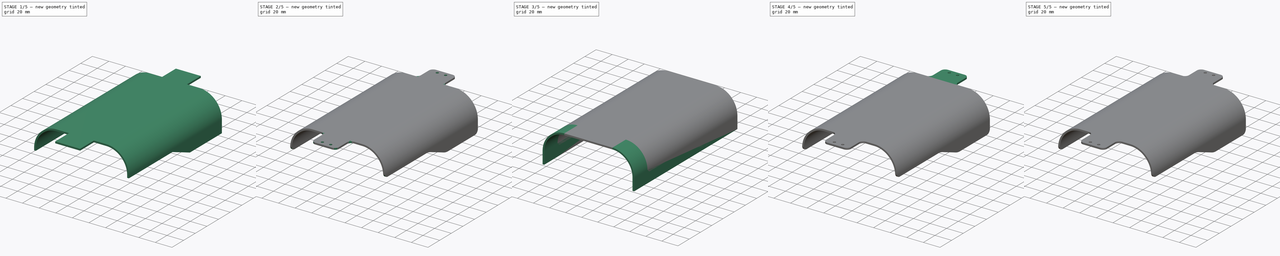
[diagram: build sequence overview — one tinted view per stage of 5, left to right]
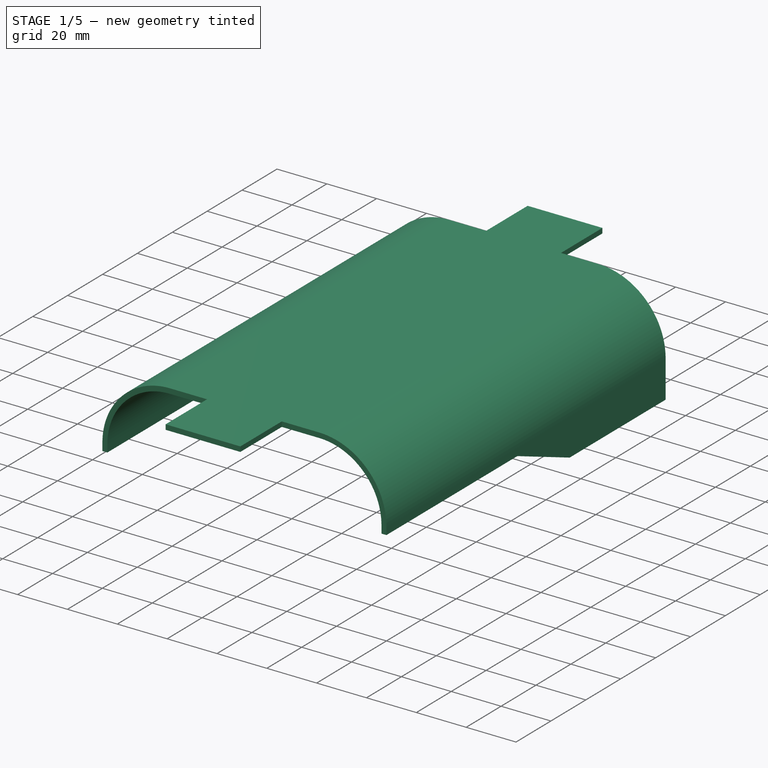
[diagram: stage 1 of 5 — iso view after this stage's code; geometry added in this stage tinted green]
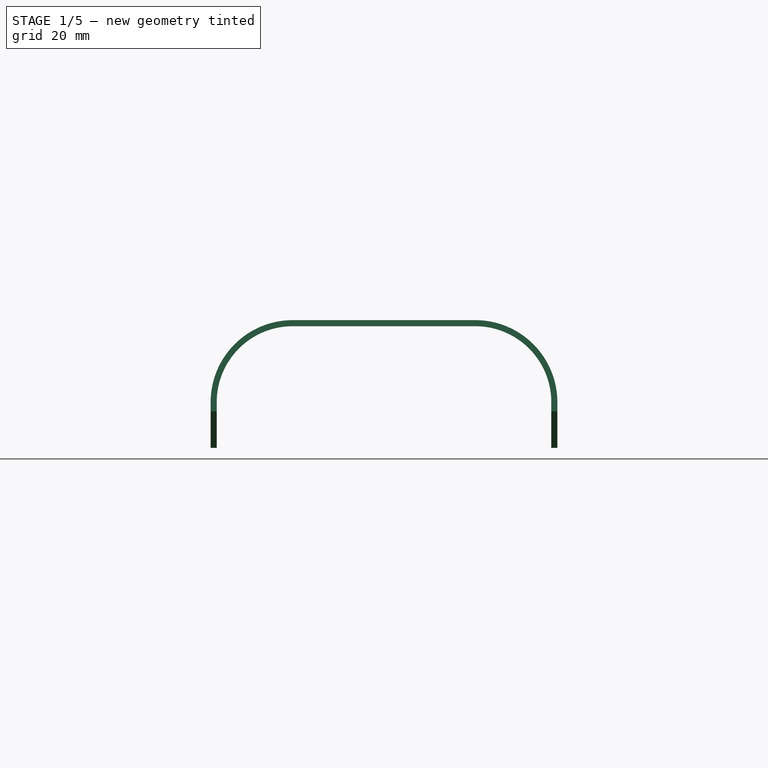
[diagram: stage 1 of 5 — front view after this stage's code; geometry added in this stage tinted green]
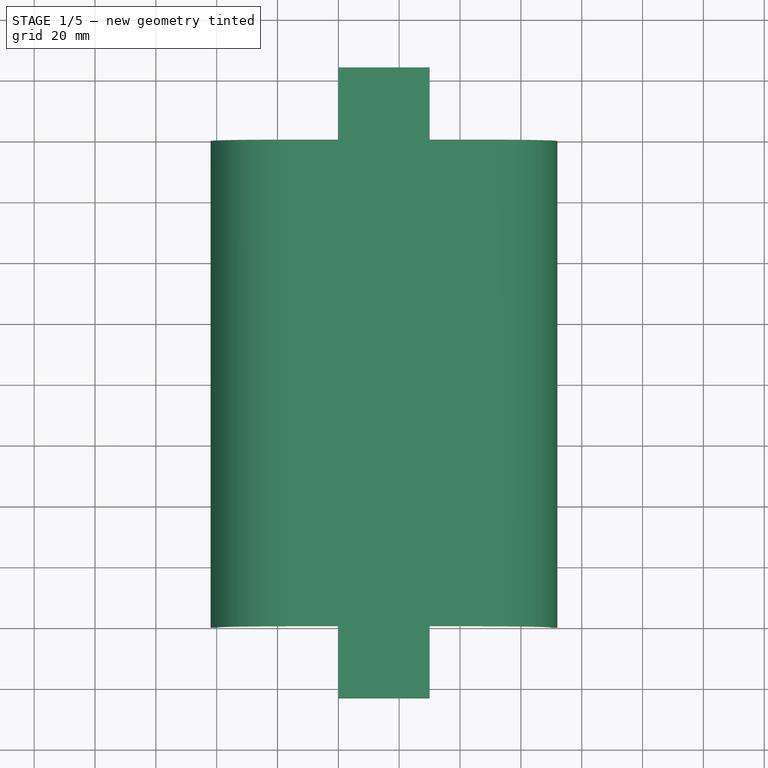
[diagram: stage 1 of 5 — top view after this stage's code; geometry added in this stage tinted green]
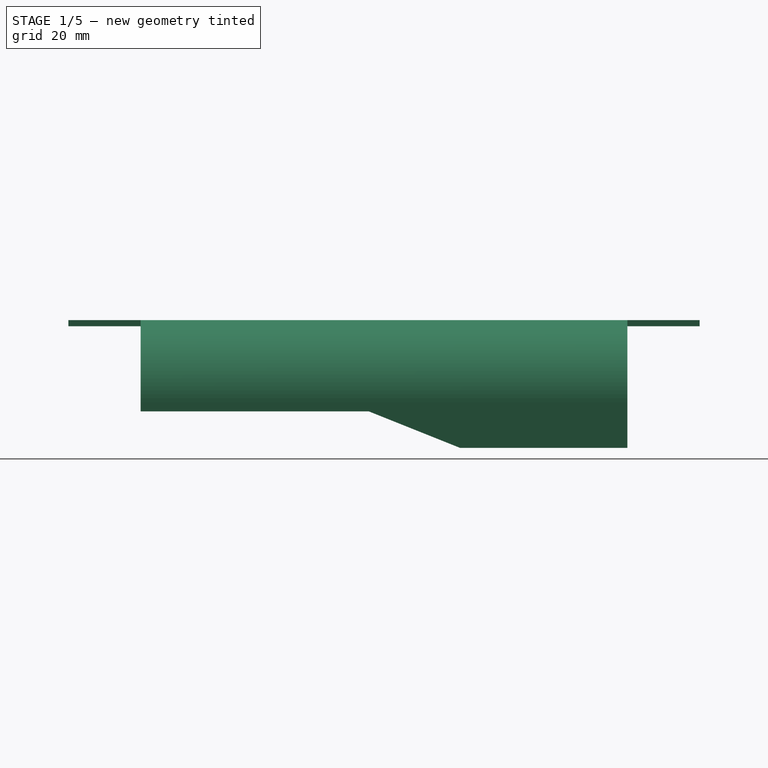
[diagram: stage 1 of 5 — right view after this stage's code; geometry added in this stage tinted green]
FCSTD DOCUMENT  (FreeCAD 0.18R4 (GitTag))
Label: Bottom_Cover_Split_Rear
License: CreativeCommons Attribution-NonCommercial
LicenseURL: http://creativecommons.org/licenses/by-nc/4.0/
objects: Sketcher::SketchObject×18, PartDesign::Pocket×13, PartDesign::Pad×8, PartDesign::Fillet×8, PartDesign::Thickness×2, PartDesign::Body×2
note: 72 computed .brp shape members not serialized (recipe doc carries the construction recipe); baked Part::Feature solids carry a one-line shape summary decoded from their .brp

FEATURE [Sketcher::SketchObject] Sketch
  AttachmentOffset = pos=(0,0,-108.85) rot=(0,0,1;0rad)
  MapMode = 5
  Placement = pos=(0,108.85,2.42e-14) rot=(1,0,0;1.5708rad)
  Support = -> [XZ_Plane226]
  sketch-geometry (4):
    g0: LineSegment StartX=-2 StartY=0 StartZ=0 EndX=112 EndY=0 EndZ=0
    g1: LineSegment StartX=112 StartY=0 StartZ=0 EndX=112 EndY=42 EndZ=0
    g2: LineSegment StartX=112 StartY=42 StartZ=0 EndX=-2 EndY=42 EndZ=0
    g3: LineSegment StartX=-2 StartY=42 StartZ=0 EndX=-2 EndY=0 EndZ=0
  constraints (12):
    c: Coincident(g0,g1)
    c: Coincident(g1,g2)
    c: Coincident(g2,g3)
    c: Coincident(g3,g0)
    c: Horizontal(g0)
    c: Horizontal(g2)
    c: Vertical(g1)
    c: Vertical(g3)
    c: PointOnObject(g0,g-1)
    c: DistanceY(g1,g1) = 42
    c: DistanceX(g2,g2) = 114
    c: DistanceX(g0,g-1) = 2
FEATURE [PartDesign::Body] Body147  label="Bottom_Cover_Split_Rear (Template)"
  Group = -> [Sketch437,Pad223,Thickness004,Pad225,Pad224,Sketch442,Pocket221,Sketch441,Pocket222,Sketch440,Pocket219,Fillet079,Fillet080,Sketch445,Pad222,Fillet081,Fillet078,Sketch438,Pocket216,Sketch444,Pocket217,Sketch439,Pocket220,Sketch]
  Origin = -> Origin226
  Placement = pos=(55,-80,12.25) rot=(0,1,0;3.14159rad)
  Tip = -> Pocket220
FEATURE [Sketcher::SketchObject] Sketch448
  MapMode = 5
  Placement = pos=(0,0,0) rot=(1,0,0;1.5708rad)
  Support = -> [XZ_Plane227]
  sketch-geometry (6):
    g0: LineSegment StartX=25 StartY=40 StartZ=0 EndX=85 EndY=40 EndZ=0
    g1: LineSegment StartX=110 StartY=15 StartZ=0 EndX=110 EndY=0 EndZ=0
    g2: LineSegment StartX=110 StartY=0 StartZ=0 EndX=0 EndY=0 EndZ=0
    g3: LineSegment StartX=0 StartY=0 StartZ=0 EndX=0 EndY=15 EndZ=0
    g4: ArcOfCircle CenterX=25 CenterY=15 CenterZ=0 NormalX=0 NormalY=0 NormalZ=1 AngleXU=0 Radius=25 StartAngle=1.5708 EndAngle=3.14159
    g5: ArcOfCircle CenterX=85 CenterY=15 CenterZ=0 NormalX=0 NormalY=0 NormalZ=1 AngleXU=0 Radius=25 StartAngle=0 EndAngle=1.5708
  constraints (15):
    c: Coincident(g1,g2)
    c: Coincident(g2,g3)
    c: Horizontal(g0)
    c: Horizontal(g2)
    c: Vertical(g1)
    c: Vertical(g3)
    c: Tangent(g3,g4) = 1.5708
    c: Tangent(g0,g4) = 1.5708
    c: Tangent(g0,g5) = 1.5708
    c: Tangent(g1,g5) = 1.5708
    c: DistanceX(g2,g2) = 110
    c: Equal(g5,g4)
    c: Radius(g4) = 25
    c: Coincident(g2,g-1)
    c: DistanceY(g2,g0) = 40
FEATURE [PartDesign::Pad] Pad229  label="Baseplate024"
  Length = 160
  Length2 = 100
  Placement = pos=(0,0,0) rot=(1,0,0;1.5708rad)
  Profile = -> Sketch448
  Reversed = true
  Type = 0
FEATURE [PartDesign::Thickness] Thickness005
  Base = -> Pad229 [Face7,Face8,Face2]
  BaseFeature = -> Pad229
  Join = 0
  Mode = 0
  Value = 2
FEATURE [PartDesign::Pad] Pad226  label="Front Expansion004"
  BaseFeature = -> Thickness005
  Length = 23.75
  Length2 = 100
  Profile = -> Thickness005 [Face6]
  Type = 0
FEATURE [PartDesign::Pad] Pad227  label="Rear Expansion004"
  BaseFeature = -> Pad226
  Length = 23.75
  Length2 = 100
  Profile = -> Pad226 [Face5]
  Type = 0
FEATURE [Sketcher::SketchObject] Sketch451
  AttachmentOffset = pos=(0,0,-108.85) rot=(0,0,1;0rad)
  MapMode = 5
  Placement = pos=(0,108.85,2.42e-14) rot=(1,0,0;1.5708rad)
  Support = -> [XZ_Plane227]
  sketch-geometry (4):
    g0: LineSegment StartX=-2 StartY=0 StartZ=0 EndX=112 EndY=0 EndZ=0
    g1: LineSegment StartX=112 StartY=0 StartZ=0 EndX=112 EndY=42 EndZ=0
    g2: LineSegment StartX=112 StartY=42 StartZ=0 EndX=-2 EndY=42 EndZ=0
    g3: LineSegment StartX=-2 StartY=42 StartZ=0 EndX=-2 EndY=0 EndZ=0
  constraints (12):
    c: Coincident(g0,g1)
    c: Coincident(g1,g2)
    c: Coincident(g2,g3)
    c: Coincident(g3,g0)
    c: Horizontal(g0)
    c: Horizontal(g2)
    c: Vertical(g1)
    c: Vertical(g3)
    c: PointOnObject(g0,g-1)
    c: DistanceY(g1,g1) = 42
    c: DistanceX(g2,g2) = 114
    c: DistanceX(g0,g-1) = 2
FEATURE [Sketcher::SketchObject] Sketch453
  AttachmentOffset = pos=(0,0,-108.85) rot=(0,0,1;0rad)
  MapMode = 5
  Placement = pos=(0,108.85,2.42e-14) rot=(1,0,0;1.5708rad)
  Support = -> [XZ_Plane227]
  sketch-geometry (14):
    g0: LineSegment StartX=0 StartY=15 StartZ=0 EndX=6.5 EndY=15 EndZ=0
    g1: LineSegment StartX=6.5 StartY=15 StartZ=0 EndX=6.5 EndY=31.8152 EndZ=0
    g2: ArcOfCircle CenterX=25 CenterY=15 CenterZ=0 NormalX=0 NormalY=0 NormalZ=1 AngleXU=0 Radius=25 StartAngle=2.40387 EndAngle=3.14159
    g3: LineSegment StartX=110 StartY=15 StartZ=0 EndX=103.5 EndY=15 EndZ=0
    g4: LineSegment StartX=103.5 StartY=15 StartZ=0 EndX=103.5 EndY=31.8152 EndZ=0
    g5: ArcOfCircle CenterX=85 CenterY=15 CenterZ=0 NormalX=0 NormalY=0 NormalZ=1 AngleXU=0 Radius=25 StartAngle=6e-16 EndAngle=0.737726
    g6: LineSegment StartX=24.25 StartY=40 StartZ=0 EndX=30.75 EndY=40 EndZ=0
    g7: LineSegment StartX=30.75 StartY=40 StartZ=0 EndX=30.75 EndY=33.5 EndZ=0
    g8: LineSegment StartX=30.75 StartY=33.5 StartZ=0 EndX=24.25 EndY=33.5 EndZ=0
    g9: LineSegment StartX=24.25 StartY=33.5 StartZ=0 EndX=24.25 EndY=40 EndZ=0
    g10: LineSegment StartX=85.75 StartY=40 StartZ=0 EndX=79.25 EndY=40 EndZ=0
    g11: LineSegment StartX=79.25 StartY=40 StartZ=0 EndX=79.25 EndY=33.5 EndZ=0
    g12: LineSegment StartX=79.25 StartY=33.5 StartZ=0 EndX=85.75 EndY=33.5 EndZ=0
    g13: LineSegment StartX=85.75 StartY=33.5 StartZ=0 EndX=85.75 EndY=40 EndZ=0
  constraints (46):
    c: PointOnObject(g0,g-2)
    c: Horizontal(g0)
    c: Coincident(g0,g1)
    c: Vertical(g1)
    c: Coincident(g2,g0)
    c: DistanceX(g0,g0) = 6.5
    c: Radius(g2) = 25
    c: DistanceY(g-1,g0) = 15
    c: Perpendicular(g2,g0)
    c: Coincident(g3,g4)
    c: Vertical(g4)
    c: Coincident(g5,g3)
    c: Horizontal(g3)
    c: Horizontal(g3,g0)
    c: Equal(g2,g5)
    c: Perpendicular(g5,g3)
    c: Equal(g3,g0)
    c: Coincident(g1,g2)
    c: Coincident(g4,g5)
    c: DistanceX(g0,g3) = 110
    c: Coincident(g6,g7)
    c: Coincident(g7,g8)
    c: Coincident(g8,g9)
    c: Coincident(g9,g6)
    c: Horizontal(g6)
    c: Horizontal(g8)
    c: Vertical(g7)
    c: Vertical(g9)
    c: Coincident(g10,g11)
    c: Coincident(g11,g12)
    c: Coincident(g12,g13)
    c: Coincident(g13,g10)
    c: Horizontal(g10)
    c: Horizontal(g12)
    c: Vertical(g11)
    c: Vertical(g13)
    c: Equal(g12,g8)
    c: Equal(g8,g3)
    c: Equal(g8,g7)
    c: Equal(g7,g13)
    c: Horizontal(g10,g6)
    c: DistanceX(g6,g10) = 55
    c: DistanceY(g-1,g6) = 40
    c: DistanceX(g-1,g8) = 24.25
    c: DistanceX(g1,g8) = 17.75
    c: DistanceX(g12,g4) = 17.75
FEATURE [Sketcher::SketchObject] Sketch454
  MapMode = 5
  Placement = pos=(0,-9.2e-15,42) rot=(0,0,1;0rad)
  Support = -> [Pad227]
  sketch-geometry (16):
    g0: LineSegment StartX=-2 StartY=0 StartZ=0 EndX=40 EndY=0 EndZ=0
    g1: LineSegment StartX=40 StartY=0 StartZ=0 EndX=40 EndY=-23.75 EndZ=0
    g2: LineSegment StartX=40 StartY=-23.75 StartZ=0 EndX=-2 EndY=-23.75 EndZ=0
    g3: LineSegment StartX=-2 StartY=-23.75 StartZ=0 EndX=-2 EndY=0 EndZ=0
    g4: LineSegment StartX=112 StartY=0 StartZ=0 EndX=70 EndY=0 EndZ=0
    g5: LineSegment StartX=70 StartY=0 StartZ=0 EndX=70 EndY=-23.75 EndZ=0
    g6: LineSegment StartX=70 StartY=-23.75 StartZ=0 EndX=112 EndY=-23.75 EndZ=0
    g7: LineSegment StartX=112 StartY=-23.75 StartZ=0 EndX=112 EndY=0 EndZ=0
    g8: LineSegment StartX=-2 StartY=160 StartZ=0 EndX=40 EndY=160 EndZ=0
    g9: LineSegment StartX=40 StartY=160 StartZ=0 EndX=40 EndY=183.75 EndZ=0
    g10: LineSegment StartX=40 StartY=183.75 StartZ=0 EndX=-2 EndY=183.75 EndZ=0
    g11: LineSegment StartX=-2 StartY=183.75 StartZ=0 EndX=-2 EndY=160 EndZ=0
    g12: LineSegment StartX=112 StartY=183.75 StartZ=0 EndX=70 EndY=183.75 EndZ=0
    g13: LineSegment StartX=70 StartY=183.75 StartZ=0 EndX=70 EndY=160 EndZ=0
    g14: LineSegment StartX=70 StartY=160 StartZ=0 EndX=112 EndY=160 EndZ=0
    g15: LineSegment StartX=112 StartY=160 StartZ=0 EndX=112 EndY=183.75 EndZ=0
  constraints (48):
    c: Coincident(g0,g1)
    c: Coincident(g1,g2)
    c: Coincident(g2,g3)
    c: Coincident(g3,g0)
    c: Horizontal(g0)
    c: Horizontal(g2)
    c: Vertical(g1)
    c: Vertical(g3)
    c: PointOnObject(g0,g-1)
    c: Coincident(g4,g5)
    c: Coincident(g5,g6)
    c: Coincident(g6,g7)
    c: Coincident(g7,g4)
    c: Horizontal(g4)
    c: Horizontal(g6)
    c: Vertical(g5)
    c: Vertical(g7)
    c: Coincident(g8,g9)
    c: Coincident(g9,g10)
    c: Coincident(g10,g11)
    c: Coincident(g11,g8)
    c: Horizontal(g8)
    c: Horizontal(g10)
    c: Vertical(g9)
    c: Vertical(g11)
    c: Coincident(g12,g13)
    c: Coincident(g13,g14)
    c: Coincident(g14,g15)
    c: Coincident(g15,g12)
    c: Horizontal(g12)
    c: Horizontal(g14)
    c: Vertical(g13)
    c: Vertical(g15)
    c: Horizontal(g9,g12)
    c: Equal(g9,g13)
    c: Equal(g10,g12)
    c: Equal(g0,g8)
    c: Equal(g4,g14)
    c: Horizontal(g0,g4)
    c: Equal(g5,g1)
    c: DistanceX(g0,g4) = 30
    c: DistanceX(g0,g0) = 42
    c: DistanceY(g3,g3) = 23.75
    c: DistanceX(g0,g-1) = 2
    c: Vertical(g0,g8)
    c: Vertical(g13,g4)
    c: DistanceY(g0,g8) = 160
    c: Equal(g9,g1)
FEATURE [PartDesign::Pocket] Pocket224  label="Shoulders004"
  BaseFeature = -> Pad227
  Length = 42
  Length2 = 100
  Profile = -> Sketch454
  Type = 0
FEATURE [Sketcher::SketchObject] Sketch449
  MapMode = 5
  Placement = pos=(112,0,0) rot=(0.57735,0.57735,0.57735;2.0944rad)
  Support = -> [Pocket224]
  sketch-geometry (6):
    g0: LineSegment StartX=0 StartY=-5 StartZ=0 EndX=-2e-16 EndY=12 EndZ=0
    g1: LineSegment StartX=-2e-16 StartY=12 StartZ=0 EndX=75 EndY=12 EndZ=0
    g2: LineSegment StartX=75 StartY=12 StartZ=0 EndX=105 EndY=0 EndZ=0
    g3: LineSegment StartX=105 StartY=0 StartZ=0 EndX=160 EndY=0 EndZ=0
    g4: LineSegment StartX=160 StartY=0 StartZ=0 EndX=160 EndY=-5 EndZ=0
    g5: LineSegment StartX=160 StartY=-5 StartZ=0 EndX=0 EndY=-5 EndZ=0
  constraints (18):
    c: PointOnObject(g0,g-2)
    c: Coincident(g0,g1)
    c: Horizontal(g1)
    c: Coincident(g1,g2)
    c: PointOnObject(g2,g-1)
    c: Coincident(g2,g3)
    c: Horizontal(g3)
    c: Coincident(g3,g4)
    c: Vertical(g4)
    c: Coincident(g4,g5)
    c: PointOnObject(g5,g-2)
    c: Horizontal(g5)
    c: Coincident(g0,g5)
    c: DistanceX(g1,g2) = 30
    c: DistanceX(g5,g5) = 160
    c: DistanceX(g1,g1) = 75
    c: DistanceY(g-1,g0) = 12
    c: DistanceY(g4,g4) = 5
FEATURE [PartDesign::Pocket] Pocket223  label="Side Detailing004"
  BaseFeature = -> Pocket224
  Length = 114
  Length2 = 100
  Profile = -> Sketch449
  Type = 0
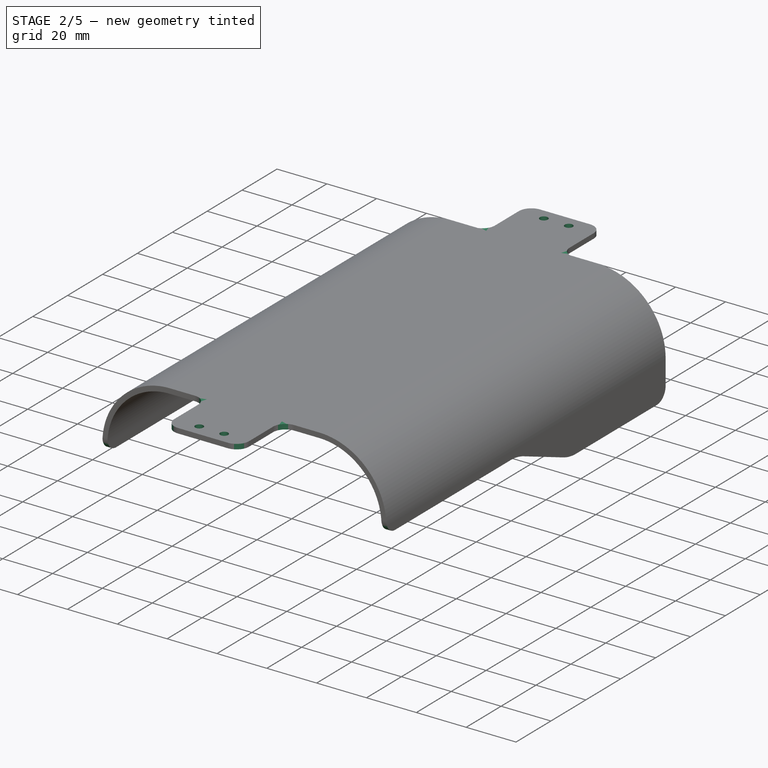
[diagram: stage 2 of 5 — iso view after this stage's code; geometry added in this stage tinted green]
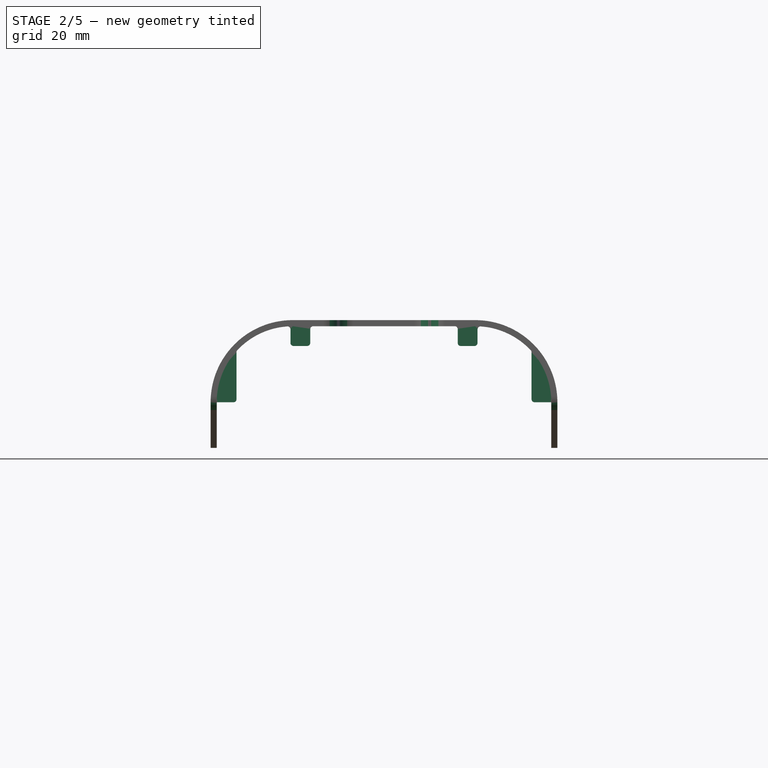
[diagram: stage 2 of 5 — front view after this stage's code; geometry added in this stage tinted green]
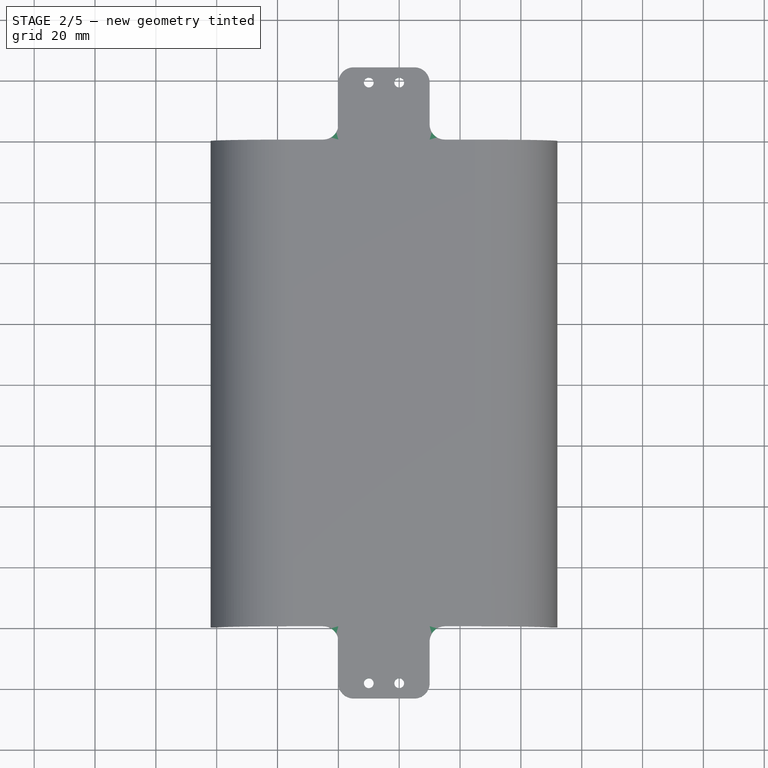
[diagram: stage 2 of 5 — top view after this stage's code; geometry added in this stage tinted green]
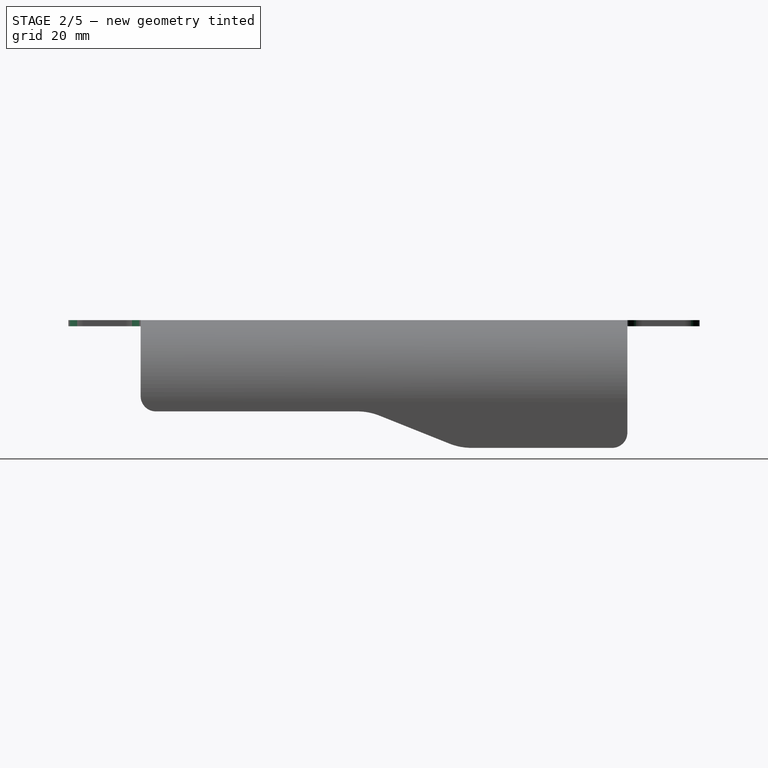
[diagram: stage 2 of 5 — right view after this stage's code; geometry added in this stage tinted green]
FEATURE [Sketcher::SketchObject] Sketch447
  MapMode = 5
  Placement = pos=(0,-9.2e-15,42) rot=(0,0,1;0rad)
  Support = -> [Pocket223]
  sketch-geometry (4):
    g0: Circle CenterX=50 CenterY=-18.75 CenterZ=0 NormalX=0 NormalY=0 NormalZ=1 AngleXU=0 Radius=1.6
    g1: Circle CenterX=60 CenterY=-18.75 CenterZ=0 NormalX=0 NormalY=0 NormalZ=1 AngleXU=0 Radius=1.6
    g2: Circle CenterX=50 CenterY=178.75 CenterZ=0 NormalX=0 NormalY=0 NormalZ=1 AngleXU=0 Radius=1.6
    g3: Circle CenterX=60 CenterY=178.75 CenterZ=0 NormalX=0 NormalY=0 NormalZ=1 AngleXU=0 Radius=1.6
  constraints (12):
    c: DistanceX(g2,g3) = 10
    c: Equal(g2,g3)
    c: Equal(g3,g0)
    c: Equal(g0,g1)
    c: Horizontal(g2,g3)
    c: Horizontal(g0,g1)
    c: Vertical(g1,g3)
    c: Vertical(g0,g2)
    c: DistanceY(g0,g-1) = 18.75
    c: DistanceX(g-1,g0) = 50
    c: DistanceY(g-1,g2) = 178.75
    c: Radius(g3) = 1.6
FEATURE [PartDesign::Pocket] Pocket225  label="Screwholes008"
  BaseFeature = -> Pocket223
  Length = 2
  Length2 = 100
  Profile = -> Sketch447
  Type = 0
FEATURE [PartDesign::Fillet] Fillet082  label="Round Corners004"
  Base = -> Pocket225 [Edge35,Edge66,Edge48,Edge12,Edge18,Edge44,Edge25,Edge76,Edge57,Edge60,Edge45,Edge9]
  BaseFeature = -> Pocket225
  Radius = 5
FEATURE [PartDesign::Fillet] Fillet084  label="Round Side Details004"
  Base = -> Fillet082 [Edge10,Edge16,Edge131,Edge132]
  BaseFeature = -> Fillet082
  Radius = 20
FEATURE [PartDesign::Pad] Pad228  label="Screwpads004"
  BaseFeature = -> Fillet084
  Length = 5.5
  Length2 = 5.5
  Profile = -> Sketch453
  Type = 4
FEATURE [PartDesign::Fillet] Fillet083  label="Smooth Screwpad Edges004"
  Base = -> Pad228 [Edge118,Edge186,Edge33,Edge31,Edge57,Edge101,Edge73,Edge26,Edge129,Edge65,Edge189,Edge122]
  BaseFeature = -> Pad228
  Radius = 1
FEATURE [PartDesign::Fillet] Fillet085  label="Smooth Screwpad Edges Side Details004"
  Base = -> Fillet083 [Edge219,Edge28]
  BaseFeature = -> Fillet083
  Radius = 0.2
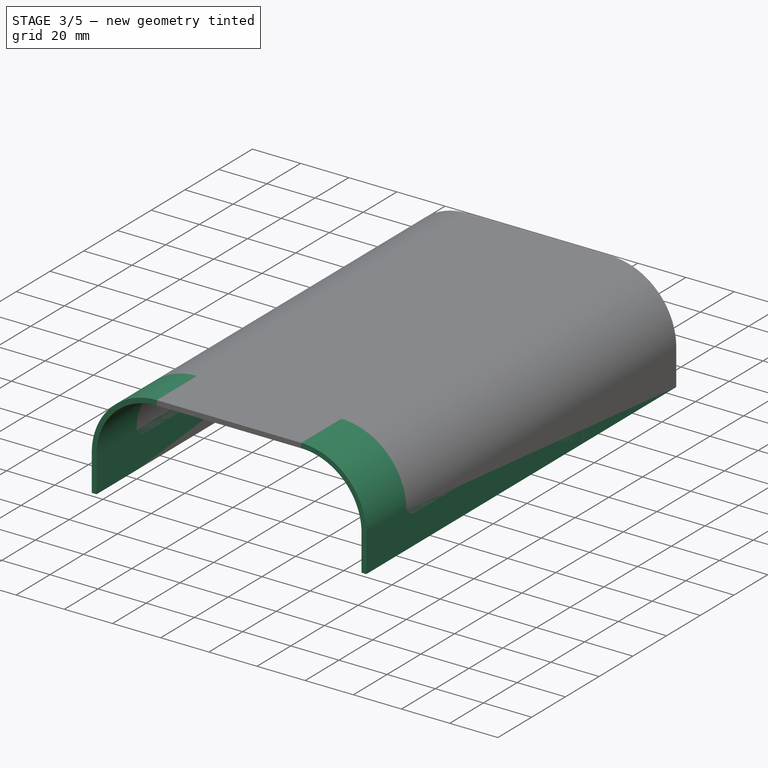
[diagram: stage 3 of 5 — iso view after this stage's code; geometry added in this stage tinted green]
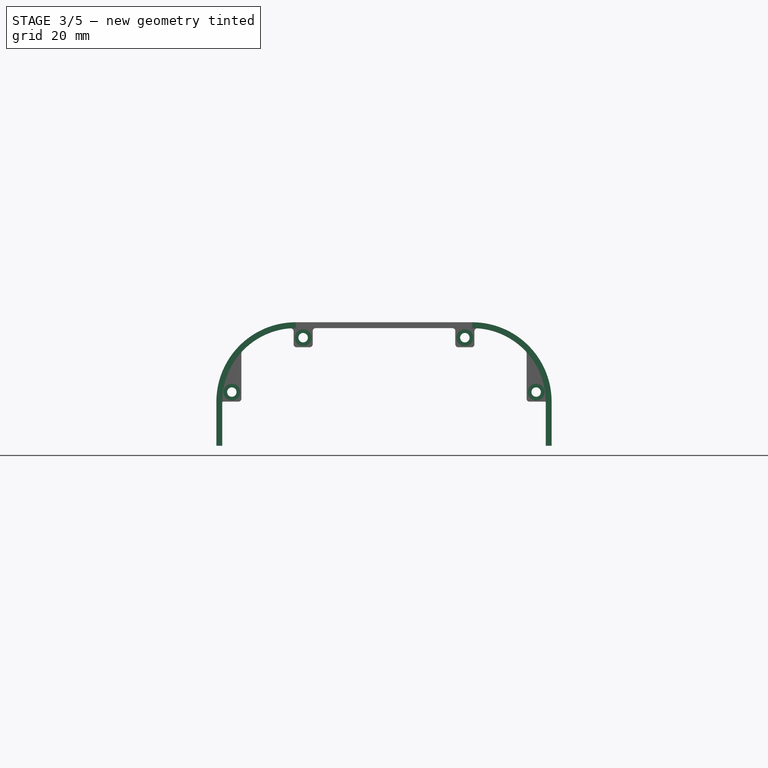
[diagram: stage 3 of 5 — front view after this stage's code; geometry added in this stage tinted green]
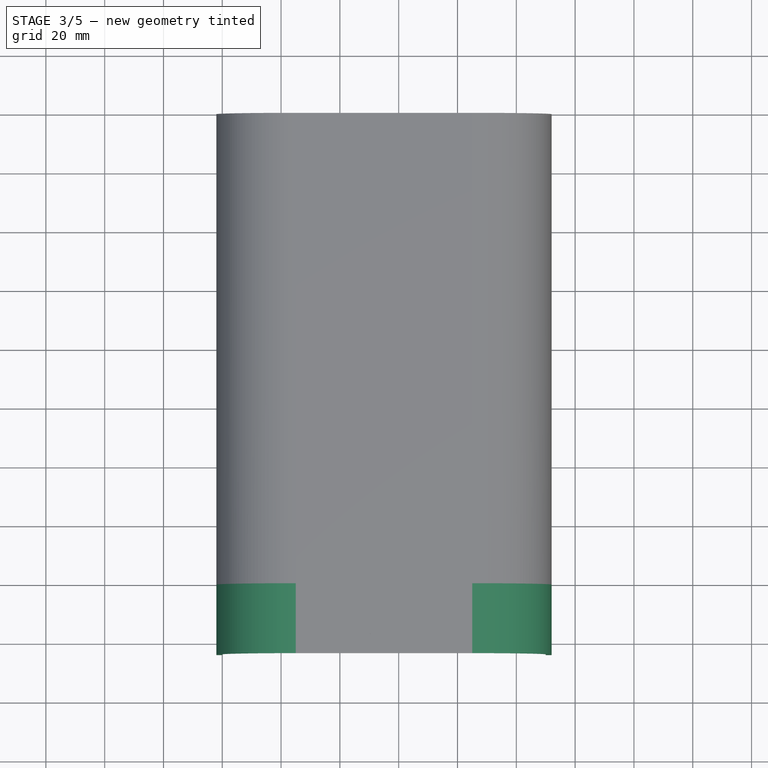
[diagram: stage 3 of 5 — top view after this stage's code; geometry added in this stage tinted green]
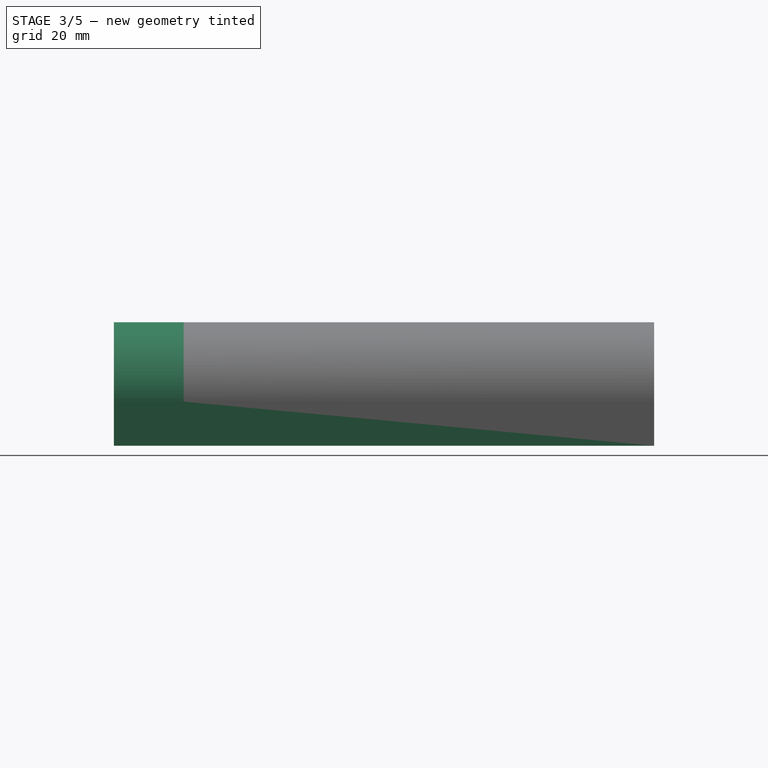
[diagram: stage 3 of 5 — right view after this stage's code; geometry added in this stage tinted green]
FEATURE [Sketcher::SketchObject] Sketch437
  MapMode = 5
  Placement = pos=(0,0,0) rot=(1,0,0;1.5708rad)
  Support = -> [XZ_Plane226]
  sketch-geometry (6):
    g0: LineSegment StartX=25 StartY=40 StartZ=0 EndX=85 EndY=40 EndZ=0
    g1: LineSegment StartX=110 StartY=15 StartZ=0 EndX=110 EndY=0 EndZ=0
    g2: LineSegment StartX=110 StartY=0 StartZ=0 EndX=0 EndY=0 EndZ=0
    g3: LineSegment StartX=0 StartY=0 StartZ=0 EndX=0 EndY=15 EndZ=0
    g4: ArcOfCircle CenterX=25 CenterY=15 CenterZ=0 NormalX=0 NormalY=0 NormalZ=1 AngleXU=0 Radius=25 StartAngle=1.5708 EndAngle=3.14159
    g5: ArcOfCircle CenterX=85 CenterY=15 CenterZ=0 NormalX=0 NormalY=0 NormalZ=1 AngleXU=0 Radius=25 StartAngle=0 EndAngle=1.5708
  constraints (15):
    c: Coincident(g1,g2)
    c: Coincident(g2,g3)
    c: Horizontal(g0)
    c: Horizontal(g2)
    c: Vertical(g1)
    c: Vertical(g3)
    c: Tangent(g3,g4) = 1.5708
    c: Tangent(g0,g4) = 1.5708
    c: Tangent(g0,g5) = 1.5708
    c: Tangent(g1,g5) = 1.5708
    c: DistanceX(g2,g2) = 110
    c: Equal(g5,g4)
    c: Radius(g4) = 25
    c: Coincident(g2,g-1)
    c: DistanceY(g2,g0) = 40
FEATURE [Sketcher::SketchObject] Sketch445
  AttachmentOffset = pos=(0,0,-108.85) rot=(0,0,1;0rad)
  MapMode = 5
  Placement = pos=(0,108.85,2.42e-14) rot=(1,0,0;1.5708rad)
  Support = -> [XZ_Plane226]
  sketch-geometry (14):
    g0: LineSegment StartX=0 StartY=15 StartZ=0 EndX=6.5 EndY=15 EndZ=0
    g1: LineSegment StartX=6.5 StartY=15 StartZ=0 EndX=6.5 EndY=31.8152 EndZ=0
    g2: ArcOfCircle CenterX=25 CenterY=15 CenterZ=0 NormalX=0 NormalY=0 NormalZ=1 AngleXU=0 Radius=25 StartAngle=2.40387 EndAngle=3.14159
    g3: LineSegment StartX=110 StartY=15 StartZ=0 EndX=103.5 EndY=15 EndZ=0
    g4: LineSegment StartX=103.5 StartY=15 StartZ=0 EndX=103.5 EndY=31.8152 EndZ=0
    g5: ArcOfCircle CenterX=85 CenterY=15 CenterZ=0 NormalX=0 NormalY=0 NormalZ=1 AngleXU=0 Radius=25 StartAngle=6e-16 EndAngle=0.737726
    g6: LineSegment StartX=24.25 StartY=40 StartZ=0 EndX=30.75 EndY=40 EndZ=0
    g7: LineSegment StartX=30.75 StartY=40 StartZ=0 EndX=30.75 EndY=33.5 EndZ=0
    g8: LineSegment StartX=30.75 StartY=33.5 StartZ=0 EndX=24.25 EndY=33.5 EndZ=0
    g9: LineSegment StartX=24.25 StartY=33.5 StartZ=0 EndX=24.25 EndY=40 EndZ=0
    g10: LineSegment StartX=85.75 StartY=40 StartZ=0 EndX=79.25 EndY=40 EndZ=0
    g11: LineSegment StartX=79.25 StartY=40 StartZ=0 EndX=79.25 EndY=33.5 EndZ=0
    g12: LineSegment StartX=79.25 StartY=33.5 StartZ=0 EndX=85.75 EndY=33.5 EndZ=0
    g13: LineSegment StartX=85.75 StartY=33.5 StartZ=0 EndX=85.75 EndY=40 EndZ=0
  constraints (46):
    c: PointOnObject(g0,g-2)
    c: Horizontal(g0)
    c: Coincident(g0,g1)
    c: Vertical(g1)
    c: Coincident(g2,g0)
    c: DistanceX(g0,g0) = 6.5
    c: Radius(g2) = 25
    c: DistanceY(g-1,g0) = 15
    c: Perpendicular(g2,g0)
    c: Coincident(g3,g4)
    c: Vertical(g4)
    c: Coincident(g5,g3)
    c: Horizontal(g3)
    c: Horizontal(g3,g0)
    c: Equal(g2,g5)
    c: Perpendicular(g5,g3)
    c: Equal(g3,g0)
    c: Coincident(g1,g2)
    c: Coincident(g4,g5)
    c: DistanceX(g0,g3) = 110
    c: Coincident(g6,g7)
    c: Coincident(g7,g8)
    c: Coincident(g8,g9)
    c: Coincident(g9,g6)
    c: Horizontal(g6)
    c: Horizontal(g8)
    c: Vertical(g7)
    c: Vertical(g9)
    c: Coincident(g10,g11)
    c: Coincident(g11,g12)
    c: Coincident(g12,g13)
    c: Coincident(g13,g10)
    c: Horizontal(g10)
    c: Horizontal(g12)
    c: Vertical(g11)
    c: Vertical(g13)
    c: Equal(g12,g8)
    c: Equal(g8,g3)
    c: Equal(g8,g7)
    c: Equal(g7,g13)
    c: Horizontal(g10,g6)
    c: DistanceX(g6,g10) = 55
    c: DistanceY(g-1,g6) = 40
    c: DistanceX(g-1,g8) = 24.25
    c: DistanceX(g1,g8) = 17.75
    c: DistanceX(g12,g4) = 17.75
FEATURE [PartDesign::Pad] Pad223  label="Baseplate023"
  Length = 160
  Length2 = 100
  Placement = pos=(0,0,0) rot=(1,0,0;1.5708rad)
  Profile = -> Sketch437
  Reversed = true
  Type = 0
FEATURE [PartDesign::Thickness] Thickness004
  Base = -> Pad223 [Face7,Face8,Face2]
  BaseFeature = -> Pad223
  Join = 0
  Mode = 0
  Value = 2
FEATURE [PartDesign::Pad] Pad225  label="Front Expansion003"
  BaseFeature = -> Thickness004
  Length = 23.75
  Length2 = 100
  Profile = -> Thickness004 [Face6]
  Type = 0
FEATURE [Sketcher::SketchObject] Sketch446
  MapMode = 5
  Placement = pos=(0,-23.75,-5.2e-15) rot=(1,0,0;1.5708rad)
  Support = -> [Fillet085]
  sketch-geometry (4):
    g0: Circle CenterX=3.25 CenterY=18.25 CenterZ=0 NormalX=0 NormalY=0 NormalZ=1 AngleXU=0 Radius=1.6
    g1: Circle CenterX=27.5 CenterY=36.75 CenterZ=0 NormalX=0 NormalY=0 NormalZ=1 AngleXU=0 Radius=1.6
    g2: Circle CenterX=82.5 CenterY=36.75 CenterZ=0 NormalX=0 NormalY=0 NormalZ=1 AngleXU=0 Radius=1.6
    g3: Circle CenterX=106.75 CenterY=18.25 CenterZ=0 NormalX=0 NormalY=0 NormalZ=1 AngleXU=0 Radius=1.6
  constraints (12):
    c: Equal(g0,g1)
    c: Equal(g1,g2)
    c: Equal(g2,g3)
    c: Radius(g3) = 1.6
    c: Horizontal(g1,g2)
    c: Horizontal(g0,g3)
    c: DistanceY(g-1,g3) = 18.25
    c: DistanceX(g0,g3) = 103.5
    c: DistanceX(g1,g2) = 55
    c: DistanceY(g-1,g2) = 36.75
    c: DistanceX(g2,g3) = 24.25
    c: DistanceX(g-1,g0) = 3.25
FEATURE [PartDesign::Pocket] Pocket227  label="Screwholes Connection004"
  BaseFeature = -> Fillet085
  Length = 11
  Length2 = 100
  Profile = -> Sketch446
  Type = 1
FEATURE [Sketcher::SketchObject] Sketch452
  AttachmentOffset = pos=(0,0,-127) rot=(0,0,1;0rad)
  MapMode = 5
  Placement = pos=(0,103.25,2.3e-14) rot=(1,0,0;1.5708rad)
  Support = -> [Pocket227]
  sketch-geometry (4):
    g0: Circle CenterX=3.25 CenterY=18.25 CenterZ=0 NormalX=0 NormalY=0 NormalZ=1 AngleXU=0 Radius=2.85
    g1: Circle CenterX=27.5 CenterY=36.75 CenterZ=0 NormalX=0 NormalY=0 NormalZ=1 AngleXU=0 Radius=2.85
    g2: Circle CenterX=82.5 CenterY=36.75 CenterZ=0 NormalX=0 NormalY=0 NormalZ=1 AngleXU=0 Radius=2.85
    g3: Circle CenterX=106.75 CenterY=18.25 CenterZ=0 NormalX=0 NormalY=0 NormalZ=1 AngleXU=0 Radius=2.85
  constraints (12):
    c: Equal(g3,g2)
    c: Equal(g2,g1)
    c: Equal(g1,g0)
    c: Radius(g3) = 2.85
    c: DistanceY(g-1,g3) = 18.25
    c: Horizontal(g3,g0)
    c: DistanceX(g0,g3) = 103.5
    c: DistanceX(g1,g2) = 55
    c: DistanceY(g-1,g2) = 36.75
    c: Horizontal(g1,g2)
    c: DistanceX(g2,g3) = 24.25
    c: DistanceX(g-1,g0) = 3.25
FEATURE [PartDesign::Pocket] Pocket228  label="Screwheads Connection004"
  BaseFeature = -> Pocket227
  Length = 3
  Length2 = 100
  Profile = -> Sketch452
  Type = 0
FEATURE [Sketcher::SketchObject] Sketch450
  MapMode = 5
  Placement = pos=(0,114.35,0) rot=(0,0.707107,0.707107;3.14159rad)
  Support = -> [Pocket228]
  sketch-geometry (28):
    g0: LineSegment StartX=-106.75 StartY=21.5986 StartZ=0 EndX=-109.65 EndY=19.9243 EndZ=0
    g1: LineSegment StartX=-109.65 StartY=19.9243 StartZ=0 EndX=-109.65 EndY=16.5757 EndZ=0
    g2: LineSegment StartX=-109.65 StartY=16.5757 StartZ=0 EndX=-106.75 EndY=14.9014 EndZ=0
    g3: LineSegment StartX=-106.75 StartY=14.9014 StartZ=0 EndX=-103.85 EndY=16.5757 EndZ=0
    g4: LineSegment StartX=-103.85 StartY=16.5757 StartZ=0 EndX=-103.85 EndY=19.9243 EndZ=0
    g5: LineSegment StartX=-103.85 StartY=19.9243 StartZ=0 EndX=-106.75 EndY=21.5986 EndZ=0
    g6: Circle [constr] CenterX=-106.75 CenterY=18.25 CenterZ=0 NormalX=0 NormalY=0 NormalZ=1 AngleXU=0 Radius=3.34863
    g7: LineSegment StartX=-79.6 StartY=38.4243 StartZ=0 EndX=-82.5 EndY=40.0986 EndZ=0
    g8: LineSegment StartX=-82.5 StartY=40.0986 StartZ=0 EndX=-85.4 EndY=38.4243 EndZ=0
    g9: LineSegment StartX=-85.4 StartY=38.4243 StartZ=0 EndX=-85.4 EndY=35.0757 EndZ=0
    g10: LineSegment StartX=-85.4 StartY=35.0757 StartZ=0 EndX=-82.5 EndY=33.4014 EndZ=0
    g11: LineSegment StartX=-82.5 StartY=33.4014 StartZ=0 EndX=-79.6 EndY=35.0757 EndZ=0
    g12: LineSegment StartX=-79.6 StartY=35.0757 StartZ=0 EndX=-79.6 EndY=38.4243 EndZ=0
    g13: Circle [constr] CenterX=-82.5 CenterY=36.75 CenterZ=0 NormalX=0 NormalY=0 NormalZ=1 AngleXU=0 Radius=3.34863
    g14: LineSegment StartX=-24.6 StartY=38.4243 StartZ=0 EndX=-27.5 EndY=40.0986 EndZ=0
    g15: LineSegment StartX=-27.5 StartY=40.0986 StartZ=0 EndX=-30.4 EndY=38.4243 EndZ=0
    g16: LineSegment StartX=-30.4 StartY=38.4243 StartZ=0 EndX=-30.4 EndY=35.0757 EndZ=0
    g17: LineSegment StartX=-30.4 StartY=35.0757 StartZ=0 EndX=-27.5 EndY=33.4014 EndZ=0
    g18: LineSegment StartX=-27.5 StartY=33.4014 StartZ=0 EndX=-24.6 EndY=35.0757 EndZ=0
    g19: LineSegment StartX=-24.6 StartY=35.0757 StartZ=0 EndX=-24.6 EndY=38.4243 EndZ=0
    g20: Circle [constr] CenterX=-27.5 CenterY=36.75 CenterZ=0 NormalX=0 NormalY=0 NormalZ=1 AngleXU=0 Radius=3.34863
    g21: LineSegment StartX=-3.25 StartY=21.5986 StartZ=0 EndX=-6.15 EndY=19.9243 EndZ=0
    g22: LineSegment StartX=-6.15 StartY=19.9243 StartZ=0 EndX=-6.15 EndY=16.5757 EndZ=0
    g23: LineSegment StartX=-6.15 StartY=16.5757 StartZ=0 EndX=-3.25 EndY=14.9014 EndZ=0
    g24: LineSegment StartX=-3.25 StartY=14.9014 StartZ=0 EndX=-0.35 EndY=16.5757 EndZ=0
    g25: LineSegment StartX=-0.35 StartY=16.5757 StartZ=0 EndX=-0.35 EndY=19.9243 EndZ=0
    g26: LineSegment StartX=-0.35 StartY=19.9243 StartZ=0 EndX=-3.25 EndY=21.5986 EndZ=0
    g27: Circle [constr] CenterX=-3.25 CenterY=18.25 CenterZ=0 NormalX=0 NormalY=0 NormalZ=1 AngleXU=0 Radius=3.34863
  constraints (68):
    c: Coincident(g0,g1)
    c: Coincident(g1,g2)
    c: Coincident(g2,g3)
    c: Coincident(g3,g4)
    c: Coincident(g4,g5)
    c: Coincident(g5,g0)
    c: Equal(g0, g1-g5) x5
    c: PointOnObject(g0,g6)
    c: PointOnObject(g1,g6)
    c: PointOnObject(g2,g6)
    c: PointOnObject(g3,g6)
    c: PointOnObject(g4,g6)
    c: PointOnObject(g5,g6)
    c: Coincident(g7,g8)
    c: Coincident(g8,g9)
    c: Coincident(g9,g10)
    c: Coincident(g10,g11)
    c: Coincident(g11,g12)
    c: Coincident(g12,g7)
    c: Equal(g7, g8-g12) x5
    c: PointOnObject(g7,g13)
    c: PointOnObject(g8,g13)
    c: PointOnObject(g9,g13)
    c: PointOnObject(g10,g13)
    c: PointOnObject(g11,g13)
    c: PointOnObject(g12,g13)
    c: Coincident(g14,g15)
    c: Coincident(g15,g16)
    c: Coincident(g16,g17)
    c: Coincident(g17,g18)
    c: Coincident(g18,g19)
    c: Coincident(g19,g14)
    c: Equal(g14, g15-g19) x5
    c: PointOnObject(g14,g20)
    c: PointOnObject(g15,g20)
    c: PointOnObject(g16,g20)
    c: PointOnObject(g17,g20)
    c: PointOnObject(g18,g20)
    c: PointOnObject(g19,g20)
    c: Coincident(g21,g22)
    c: Coincident(g22,g23)
    c: Coincident(g23,g24)
    c: Coincident(g24,g25)
    c: Coincident(g25,g26)
    c: Coincident(g26,g21)
    c: Equal(g21, g22-g26) x5
    c: PointOnObject(g21,g27)
    c: PointOnObject(g22,g27)
    c: PointOnObject(g23,g27)
    c: PointOnObject(g24,g27)
    c: PointOnObject(g25,g27)
    c: PointOnObject(g26,g27)
    c: Vertical(g12)
    c: Vertical(g16)
    c: Vertical(g4)
    c: Vertical(g22)
    c: Equal(g27,g20)
    c: Equal(g20,g13)
    c: Equal(g13,g6)
    c: DistanceX(g21,g25) = 5.8
    c: DistanceY(g-1,g6) = 18.25
    c: DistanceX(g6,g27) = 103.5
    c: Horizontal(g27,g6)
    c: Horizontal(g13,g20)
    c: DistanceX(g13,g20) = 55
    c: DistanceY(g-1,g13) = 36.75
    c: DistanceX(g6,g13) = 24.25
    c: DistanceX(g27,g-1) = 3.25
FEATURE [PartDesign::Pocket] Pocket226  label="Nutholes Connection004"
  BaseFeature = -> Pocket228
  Length = 2.5
  Length2 = 100
  Profile = -> Sketch450
  Type = 0
FEATURE [PartDesign::Pocket] Pocket  label="Remove Front"
  BaseFeature = -> Pocket226
  Length = 200
  Length2 = 100
  Profile = -> Sketch451
  Type = 0
FEATURE [PartDesign::Body] Body148  label="Bottom_Cover_Split_Rear"
  Group = -> [Sketch448,Pad229,Thickness005,Pad226,Pad227,Sketch454,Pocket224,Sketch449,Pocket223,Sketch447,Pocket225,Fillet082,Fillet084,Sketch453,Pad228,Fillet083,Fillet085,Sketch446,Pocket227,Sketch452,Pocket228,Sketch450,Pocket226,Sketch451,Pocket]
  Origin = -> Origin227
  Placement = pos=(55,-80,12.25) rot=(-1,0,0;1.5708rad)
  Tip = -> Pocket
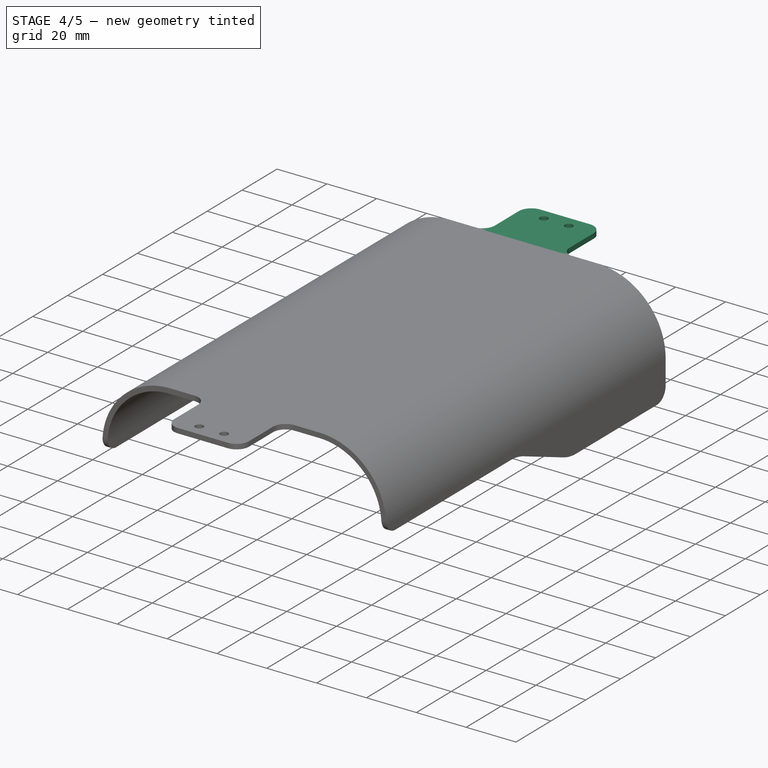
[diagram: stage 4 of 5 — iso view after this stage's code; geometry added in this stage tinted green]
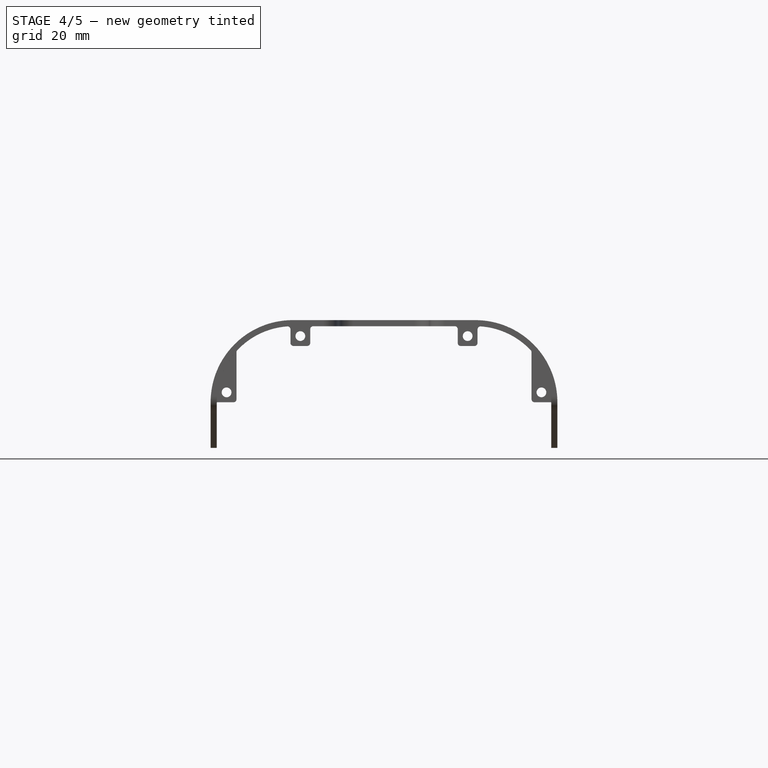
[diagram: stage 4 of 5 — front view after this stage's code; geometry added in this stage tinted green]
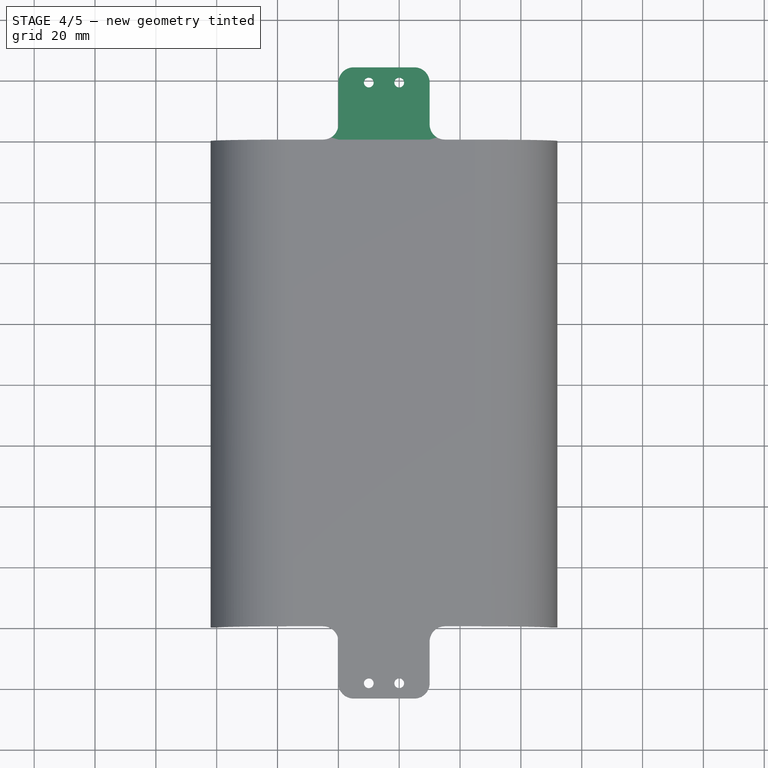
[diagram: stage 4 of 5 — top view after this stage's code; geometry added in this stage tinted green]
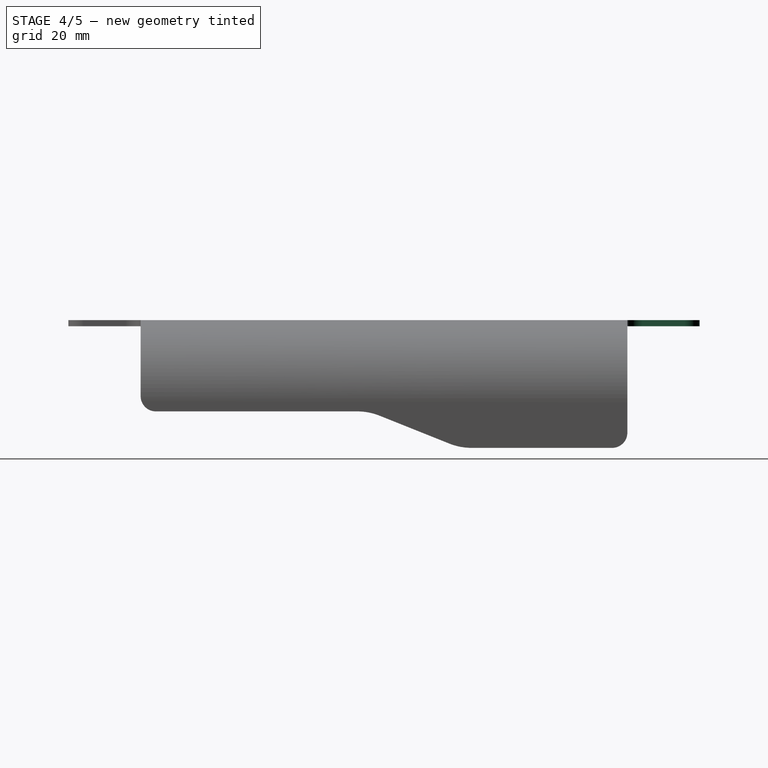
[diagram: stage 4 of 5 — right view after this stage's code; geometry added in this stage tinted green]
FEATURE [PartDesign::Pad] Pad224  label="Rear Expansion003"
  BaseFeature = -> Pad225
  Length = 23.75
  Length2 = 100
  Profile = -> Pad225 [Face5]
  Type = 0
FEATURE [Sketcher::SketchObject] Sketch442
  MapMode = 5
  Placement = pos=(0,-9.2e-15,42) rot=(0,0,1;0rad)
  Support = -> [Pad224]
  sketch-geometry (16):
    g0: LineSegment StartX=-2 StartY=0 StartZ=0 EndX=40 EndY=0 EndZ=0
    g1: LineSegment StartX=40 StartY=0 StartZ=0 EndX=40 EndY=-23.75 EndZ=0
    g2: LineSegment StartX=40 StartY=-23.75 StartZ=0 EndX=-2 EndY=-23.75 EndZ=0
    g3: LineSegment StartX=-2 StartY=-23.75 StartZ=0 EndX=-2 EndY=0 EndZ=0
    g4: LineSegment StartX=112 StartY=0 StartZ=0 EndX=70 EndY=0 EndZ=0
    g5: LineSegment StartX=70 StartY=0 StartZ=0 EndX=70 EndY=-23.75 EndZ=0
    g6: LineSegment StartX=70 StartY=-23.75 StartZ=0 EndX=112 EndY=-23.75 EndZ=0
    g7: LineSegment StartX=112 StartY=-23.75 StartZ=0 EndX=112 EndY=0 EndZ=0
    g8: LineSegment StartX=-2 StartY=160 StartZ=0 EndX=40 EndY=160 EndZ=0
    g9: LineSegment StartX=40 StartY=160 StartZ=0 EndX=40 EndY=183.75 EndZ=0
    g10: LineSegment StartX=40 StartY=183.75 StartZ=0 EndX=-2 EndY=183.75 EndZ=0
    g11: LineSegment StartX=-2 StartY=183.75 StartZ=0 EndX=-2 EndY=160 EndZ=0
    g12: LineSegment StartX=112 StartY=183.75 StartZ=0 EndX=70 EndY=183.75 EndZ=0
    g13: LineSegment StartX=70 StartY=183.75 StartZ=0 EndX=70 EndY=160 EndZ=0
    g14: LineSegment StartX=70 StartY=160 StartZ=0 EndX=112 EndY=160 EndZ=0
    g15: LineSegment StartX=112 StartY=160 StartZ=0 EndX=112 EndY=183.75 EndZ=0
  constraints (48):
    c: Coincident(g0,g1)
    c: Coincident(g1,g2)
    c: Coincident(g2,g3)
    c: Coincident(g3,g0)
    c: Horizontal(g0)
    c: Horizontal(g2)
    c: Vertical(g1)
    c: Vertical(g3)
    c: PointOnObject(g0,g-1)
    c: Coincident(g4,g5)
    c: Coincident(g5,g6)
    c: Coincident(g6,g7)
    c: Coincident(g7,g4)
    c: Horizontal(g4)
    c: Horizontal(g6)
    c: Vertical(g5)
    c: Vertical(g7)
    c: Coincident(g8,g9)
    c: Coincident(g9,g10)
    c: Coincident(g10,g11)
    c: Coincident(g11,g8)
    c: Horizontal(g8)
    c: Horizontal(g10)
    c: Vertical(g9)
    c: Vertical(g11)
    c: Coincident(g12,g13)
    c: Coincident(g13,g14)
    c: Coincident(g14,g15)
    c: Coincident(g15,g12)
    c: Horizontal(g12)
    c: Horizontal(g14)
    c: Vertical(g13)
    c: Vertical(g15)
    c: Horizontal(g9,g12)
    c: Equal(g9,g13)
    c: Equal(g10,g12)
    c: Equal(g0,g8)
    c: Equal(g4,g14)
    c: Horizontal(g0,g4)
    c: Equal(g5,g1)
    c: DistanceX(g0,g4) = 30
    c: DistanceX(g0,g0) = 42
    c: DistanceY(g3,g3) = 23.75
    c: DistanceX(g0,g-1) = 2
    c: Vertical(g0,g8)
    c: Vertical(g13,g4)
    c: DistanceY(g0,g8) = 160
    c: Equal(g9,g1)
FEATURE [PartDesign::Pocket] Pocket221  label="Shoulders003"
  BaseFeature = -> Pad224
  Length = 42
  Length2 = 100
  Profile = -> Sketch442
  Type = 0
FEATURE [Sketcher::SketchObject] Sketch441
  MapMode = 5
  Placement = pos=(112,0,0) rot=(0.57735,0.57735,0.57735;2.0944rad)
  Support = -> [Pocket221]
  sketch-geometry (6):
    g0: LineSegment StartX=0 StartY=-5 StartZ=0 EndX=-2e-16 EndY=12 EndZ=0
    g1: LineSegment StartX=-2e-16 StartY=12 StartZ=0 EndX=75 EndY=12 EndZ=0
    g2: LineSegment StartX=75 StartY=12 StartZ=0 EndX=105 EndY=0 EndZ=0
    g3: LineSegment StartX=105 StartY=0 StartZ=0 EndX=160 EndY=0 EndZ=0
    g4: LineSegment StartX=160 StartY=0 StartZ=0 EndX=160 EndY=-5 EndZ=0
    g5: LineSegment StartX=160 StartY=-5 StartZ=0 EndX=0 EndY=-5 EndZ=0
  constraints (18):
    c: PointOnObject(g0,g-2)
    c: Coincident(g0,g1)
    c: Horizontal(g1)
    c: Coincident(g1,g2)
    c: PointOnObject(g2,g-1)
    c: Coincident(g2,g3)
    c: Horizontal(g3)
    c: Coincident(g3,g4)
    c: Vertical(g4)
    c: Coincident(g4,g5)
    c: PointOnObject(g5,g-2)
    c: Horizontal(g5)
    c: Coincident(g0,g5)
    c: DistanceX(g1,g2) = 30
    c: DistanceX(g5,g5) = 160
    c: DistanceX(g1,g1) = 75
    c: DistanceY(g-1,g0) = 12
    c: DistanceY(g4,g4) = 5
FEATURE [PartDesign::Pocket] Pocket222  label="Side Detailing003"
  BaseFeature = -> Pocket221
  Length = 114
  Length2 = 100
  Profile = -> Sketch441
  Type = 0
FEATURE [Sketcher::SketchObject] Sketch440
  MapMode = 5
  Placement = pos=(0,-9.2e-15,42) rot=(0,0,1;0rad)
  Support = -> [Pocket222]
  sketch-geometry (4):
    g0: Circle CenterX=50 CenterY=-18.75 CenterZ=0 NormalX=0 NormalY=0 NormalZ=1 AngleXU=0 Radius=1.6
    g1: Circle CenterX=60 CenterY=-18.75 CenterZ=0 NormalX=0 NormalY=0 NormalZ=1 AngleXU=0 Radius=1.6
    g2: Circle CenterX=50 CenterY=178.75 CenterZ=0 NormalX=0 NormalY=0 NormalZ=1 AngleXU=0 Radius=1.6
    g3: Circle CenterX=60 CenterY=178.75 CenterZ=0 NormalX=0 NormalY=0 NormalZ=1 AngleXU=0 Radius=1.6
  constraints (12):
    c: DistanceX(g2,g3) = 10
    c: Equal(g2,g3)
    c: Equal(g3,g0)
    c: Equal(g0,g1)
    c: Horizontal(g2,g3)
    c: Horizontal(g0,g1)
    c: Vertical(g1,g3)
    c: Vertical(g0,g2)
    c: DistanceY(g0,g-1) = 18.75
    c: DistanceX(g-1,g0) = 50
    c: DistanceY(g-1,g2) = 178.75
    c: Radius(g3) = 1.6
FEATURE [PartDesign::Pocket] Pocket219  label="Screwholes007"
  BaseFeature = -> Pocket222
  Length = 2
  Length2 = 100
  Profile = -> Sketch440
  Type = 0
FEATURE [PartDesign::Fillet] Fillet079  label="Round Corners003"
  Base = -> Pocket219 [Edge35,Edge66,Edge48,Edge12,Edge18,Edge44,Edge25,Edge76,Edge57,Edge60,Edge45,Edge9]
  BaseFeature = -> Pocket219
  Radius = 5
FEATURE [PartDesign::Fillet] Fillet080  label="Round Side Details003"
  Base = -> Fillet079 [Edge10,Edge16,Edge131,Edge132]
  BaseFeature = -> Fillet079
  Radius = 20
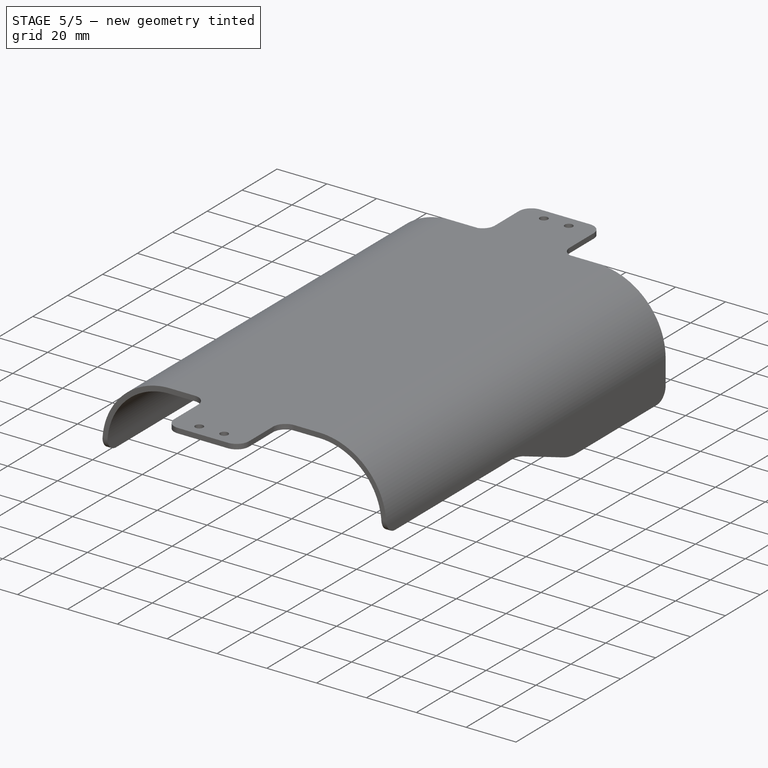
[diagram: stage 5 of 5 — iso view after this stage's code; geometry added in this stage tinted green]
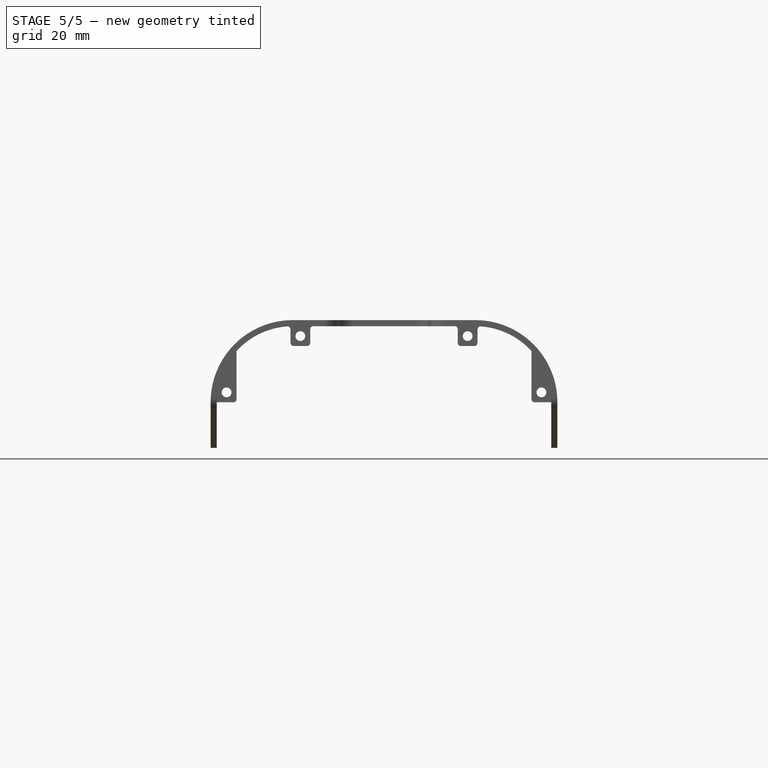
[diagram: stage 5 of 5 — front view after this stage's code; geometry added in this stage tinted green]
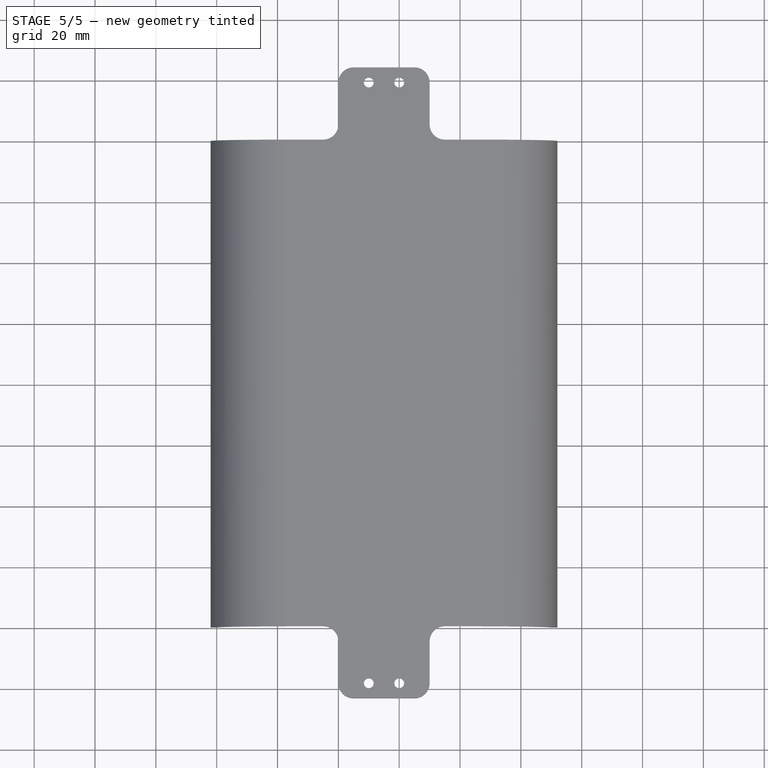
[diagram: stage 5 of 5 — top view after this stage's code; geometry added in this stage tinted green]
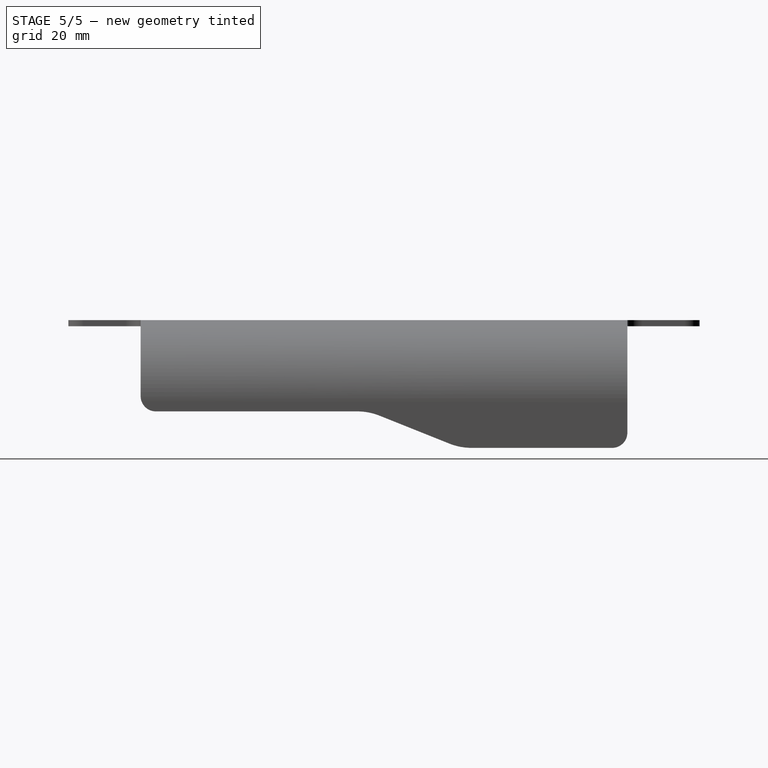
[diagram: stage 5 of 5 — right view after this stage's code; geometry added in this stage tinted green]
FEATURE [PartDesign::Pad] Pad222  label="Screwpads003"
  BaseFeature = -> Fillet080
  Length = 5.5
  Length2 = 5.5
  Profile = -> Sketch445
  Type = 4
FEATURE [PartDesign::Fillet] Fillet081  label="Smooth Screwpad Edges003"
  Base = -> Pad222 [Edge118,Edge186,Edge33,Edge31,Edge57,Edge101,Edge73,Edge26,Edge129,Edge65,Edge189,Edge122]
  BaseFeature = -> Pad222
  Radius = 1
FEATURE [PartDesign::Fillet] Fillet078  label="Smooth Screwpad Edges Side Details003"
  Base = -> Fillet081 [Edge219,Edge28]
  BaseFeature = -> Fillet081
  Radius = 0.2
FEATURE [Sketcher::SketchObject] Sketch438
  MapMode = 5
  Placement = pos=(0,-23.75,-5.2e-15) rot=(1,0,0;1.5708rad)
  Support = -> [Fillet078]
  sketch-geometry (4):
    g0: Circle CenterX=3.25 CenterY=18.25 CenterZ=0 NormalX=0 NormalY=0 NormalZ=1 AngleXU=0 Radius=1.6
    g1: Circle CenterX=27.5 CenterY=36.75 CenterZ=0 NormalX=0 NormalY=0 NormalZ=1 AngleXU=0 Radius=1.6
    g2: Circle CenterX=82.5 CenterY=36.75 CenterZ=0 NormalX=0 NormalY=0 NormalZ=1 AngleXU=0 Radius=1.6
    g3: Circle CenterX=106.75 CenterY=18.25 CenterZ=0 NormalX=0 NormalY=0 NormalZ=1 AngleXU=0 Radius=1.6
  constraints (12):
    c: Equal(g0,g1)
    c: Equal(g1,g2)
    c: Equal(g2,g3)
    c: Radius(g3) = 1.6
    c: Horizontal(g1,g2)
    c: Horizontal(g0,g3)
    c: DistanceY(g-1,g3) = 18.25
    c: DistanceX(g0,g3) = 103.5
    c: DistanceX(g1,g2) = 55
    c: DistanceY(g-1,g2) = 36.75
    c: DistanceX(g2,g3) = 24.25
    c: DistanceX(g-1,g0) = 3.25
FEATURE [PartDesign::Pocket] Pocket216  label="Screwholes Connection003"
  BaseFeature = -> Fillet078
  Length = 11
  Length2 = 100
  Profile = -> Sketch438
  Type = 1
FEATURE [Sketcher::SketchObject] Sketch444
  AttachmentOffset = pos=(0,0,-127) rot=(0,0,1;0rad)
  MapMode = 5
  Placement = pos=(0,103.25,2.3e-14) rot=(1,0,0;1.5708rad)
  Support = -> [Pocket216]
  sketch-geometry (4):
    g0: Circle CenterX=3.25 CenterY=18.25 CenterZ=0 NormalX=0 NormalY=0 NormalZ=1 AngleXU=0 Radius=2.85
    g1: Circle CenterX=27.5 CenterY=36.75 CenterZ=0 NormalX=0 NormalY=0 NormalZ=1 AngleXU=0 Radius=2.85
    g2: Circle CenterX=82.5 CenterY=36.75 CenterZ=0 NormalX=0 NormalY=0 NormalZ=1 AngleXU=0 Radius=2.85
    g3: Circle CenterX=106.75 CenterY=18.25 CenterZ=0 NormalX=0 NormalY=0 NormalZ=1 AngleXU=0 Radius=2.85
  constraints (12):
    c: Equal(g3,g2)
    c: Equal(g2,g1)
    c: Equal(g1,g0)
    c: Radius(g3) = 2.85
    c: DistanceY(g-1,g3) = 18.25
    c: Horizontal(g3,g0)
    c: DistanceX(g0,g3) = 103.5
    c: DistanceX(g1,g2) = 55
    c: DistanceY(g-1,g2) = 36.75
    c: Horizontal(g1,g2)
    c: DistanceX(g2,g3) = 24.25
    c: DistanceX(g-1,g0) = 3.25
FEATURE [PartDesign::Pocket] Pocket217  label="Screwheads Connection003"
  BaseFeature = -> Pocket216
  Length = 3
  Length2 = 100
  Profile = -> Sketch444
  Type = 0
FEATURE [Sketcher::SketchObject] Sketch439
  MapMode = 5
  Placement = pos=(0,114.35,0) rot=(0,0.707107,0.707107;3.14159rad)
  Support = -> [Pocket217]
  sketch-geometry (28):
    g0: LineSegment StartX=-106.75 StartY=21.5986 StartZ=0 EndX=-109.65 EndY=19.9243 EndZ=0
    g1: LineSegment StartX=-109.65 StartY=19.9243 StartZ=0 EndX=-109.65 EndY=16.5757 EndZ=0
    g2: LineSegment StartX=-109.65 StartY=16.5757 StartZ=0 EndX=-106.75 EndY=14.9014 EndZ=0
    g3: LineSegment StartX=-106.75 StartY=14.9014 StartZ=0 EndX=-103.85 EndY=16.5757 EndZ=0
    g4: LineSegment StartX=-103.85 StartY=16.5757 StartZ=0 EndX=-103.85 EndY=19.9243 EndZ=0
    g5: LineSegment StartX=-103.85 StartY=19.9243 StartZ=0 EndX=-106.75 EndY=21.5986 EndZ=0
    g6: Circle [constr] CenterX=-106.75 CenterY=18.25 CenterZ=0 NormalX=0 NormalY=0 NormalZ=1 AngleXU=0 Radius=3.34863
    g7: LineSegment StartX=-79.6 StartY=38.4243 StartZ=0 EndX=-82.5 EndY=40.0986 EndZ=0
    g8: LineSegment StartX=-82.5 StartY=40.0986 StartZ=0 EndX=-85.4 EndY=38.4243 EndZ=0
    g9: LineSegment StartX=-85.4 StartY=38.4243 StartZ=0 EndX=-85.4 EndY=35.0757 EndZ=0
    g10: LineSegment StartX=-85.4 StartY=35.0757 StartZ=0 EndX=-82.5 EndY=33.4014 EndZ=0
    g11: LineSegment StartX=-82.5 StartY=33.4014 StartZ=0 EndX=-79.6 EndY=35.0757 EndZ=0
    g12: LineSegment StartX=-79.6 StartY=35.0757 StartZ=0 EndX=-79.6 EndY=38.4243 EndZ=0
    g13: Circle [constr] CenterX=-82.5 CenterY=36.75 CenterZ=0 NormalX=0 NormalY=0 NormalZ=1 AngleXU=0 Radius=3.34863
    g14: LineSegment StartX=-24.6 StartY=38.4243 StartZ=0 EndX=-27.5 EndY=40.0986 EndZ=0
    g15: LineSegment StartX=-27.5 StartY=40.0986 StartZ=0 EndX=-30.4 EndY=38.4243 EndZ=0
    g16: LineSegment StartX=-30.4 StartY=38.4243 StartZ=0 EndX=-30.4 EndY=35.0757 EndZ=0
    g17: LineSegment StartX=-30.4 StartY=35.0757 StartZ=0 EndX=-27.5 EndY=33.4014 EndZ=0
    g18: LineSegment StartX=-27.5 StartY=33.4014 StartZ=0 EndX=-24.6 EndY=35.0757 EndZ=0
    g19: LineSegment StartX=-24.6 StartY=35.0757 StartZ=0 EndX=-24.6 EndY=38.4243 EndZ=0
    g20: Circle [constr] CenterX=-27.5 CenterY=36.75 CenterZ=0 NormalX=0 NormalY=0 NormalZ=1 AngleXU=0 Radius=3.34863
    g21: LineSegment StartX=-3.25 StartY=21.5986 StartZ=0 EndX=-6.15 EndY=19.9243 EndZ=0
    g22: LineSegment StartX=-6.15 StartY=19.9243 StartZ=0 EndX=-6.15 EndY=16.5757 EndZ=0
    g23: LineSegment StartX=-6.15 StartY=16.5757 StartZ=0 EndX=-3.25 EndY=14.9014 EndZ=0
    g24: LineSegment StartX=-3.25 StartY=14.9014 StartZ=0 EndX=-0.35 EndY=16.5757 EndZ=0
    g25: LineSegment StartX=-0.35 StartY=16.5757 StartZ=0 EndX=-0.35 EndY=19.9243 EndZ=0
    g26: LineSegment StartX=-0.35 StartY=19.9243 StartZ=0 EndX=-3.25 EndY=21.5986 EndZ=0
    g27: Circle [constr] CenterX=-3.25 CenterY=18.25 CenterZ=0 NormalX=0 NormalY=0 NormalZ=1 AngleXU=0 Radius=3.34863
  constraints (68):
    c: Coincident(g0,g1)
    c: Coincident(g1,g2)
    c: Coincident(g2,g3)
    c: Coincident(g3,g4)
    c: Coincident(g4,g5)
    c: Coincident(g5,g0)
    c: Equal(g0, g1-g5) x5
    c: PointOnObject(g0,g6)
    c: PointOnObject(g1,g6)
    c: PointOnObject(g2,g6)
    c: PointOnObject(g3,g6)
    c: PointOnObject(g4,g6)
    c: PointOnObject(g5,g6)
    c: Coincident(g7,g8)
    c: Coincident(g8,g9)
    c: Coincident(g9,g10)
    c: Coincident(g10,g11)
    c: Coincident(g11,g12)
    c: Coincident(g12,g7)
    c: Equal(g7, g8-g12) x5
    c: PointOnObject(g7,g13)
    c: PointOnObject(g8,g13)
    c: PointOnObject(g9,g13)
    c: PointOnObject(g10,g13)
    c: PointOnObject(g11,g13)
    c: PointOnObject(g12,g13)
    c: Coincident(g14,g15)
    c: Coincident(g15,g16)
    c: Coincident(g16,g17)
    c: Coincident(g17,g18)
    c: Coincident(g18,g19)
    c: Coincident(g19,g14)
    c: Equal(g14, g15-g19) x5
    c: PointOnObject(g14,g20)
    c: PointOnObject(g15,g20)
    c: PointOnObject(g16,g20)
    c: PointOnObject(g17,g20)
    c: PointOnObject(g18,g20)
    c: PointOnObject(g19,g20)
    c: Coincident(g21,g22)
    c: Coincident(g22,g23)
    c: Coincident(g23,g24)
    c: Coincident(g24,g25)
    c: Coincident(g25,g26)
    c: Coincident(g26,g21)
    c: Equal(g21, g22-g26) x5
    c: PointOnObject(g21,g27)
    c: PointOnObject(g22,g27)
    c: PointOnObject(g23,g27)
    c: PointOnObject(g24,g27)
    c: PointOnObject(g25,g27)
    c: PointOnObject(g26,g27)
    c: Vertical(g12)
    c: Vertical(g16)
    c: Vertical(g4)
    c: Vertical(g22)
    c: Equal(g27,g20)
    c: Equal(g20,g13)
    c: Equal(g13,g6)
    c: DistanceX(g21,g25) = 5.8
    c: DistanceY(g-1,g6) = 18.25
    c: DistanceX(g6,g27) = 103.5
    c: Horizontal(g27,g6)
    c: Horizontal(g13,g20)
    c: DistanceX(g13,g20) = 55
    c: DistanceY(g-1,g13) = 36.75
    c: DistanceX(g6,g13) = 24.25
    c: DistanceX(g27,g-1) = 3.25
FEATURE [PartDesign::Pocket] Pocket220  label="Nutholes Connection003"
  BaseFeature = -> Pocket217
  Length = 2.5
  Length2 = 100
  Profile = -> Sketch439
  Type = 0
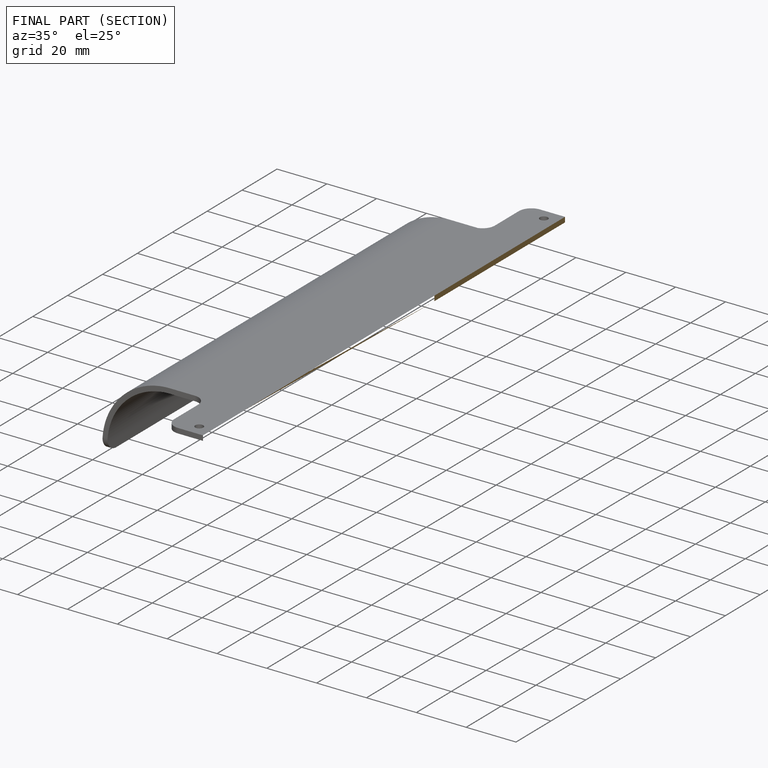
[diagram: finished part — half-section view (interior)]
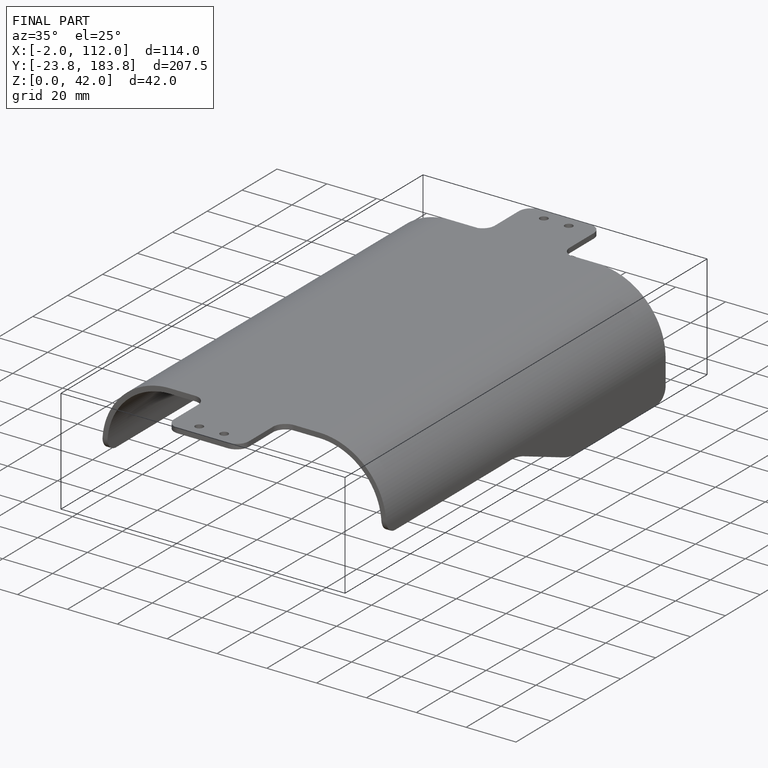
[diagram: finished part — iso view with bounding-box wireframe]
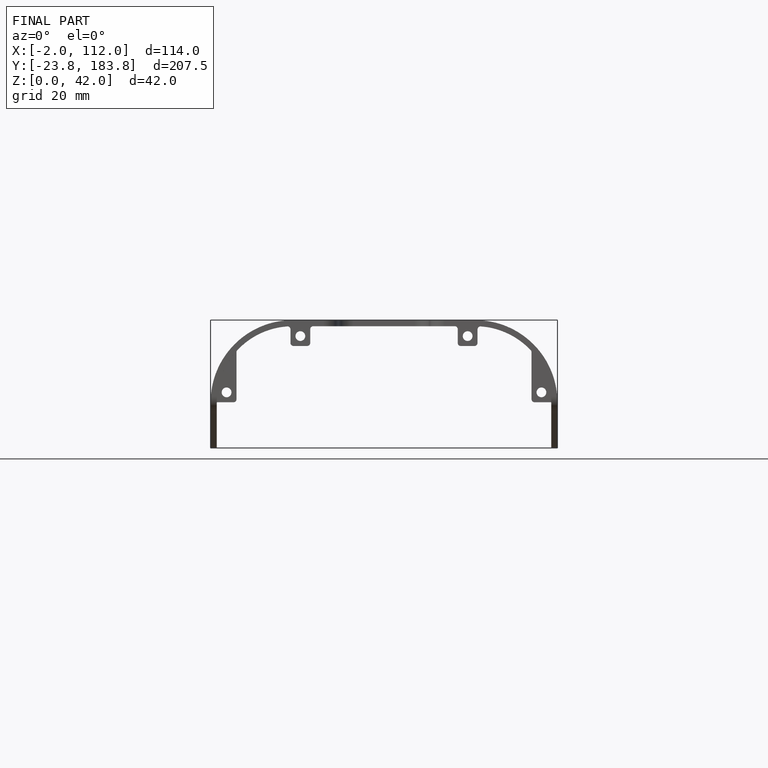
[diagram: finished part — front view with bounding-box wireframe]
